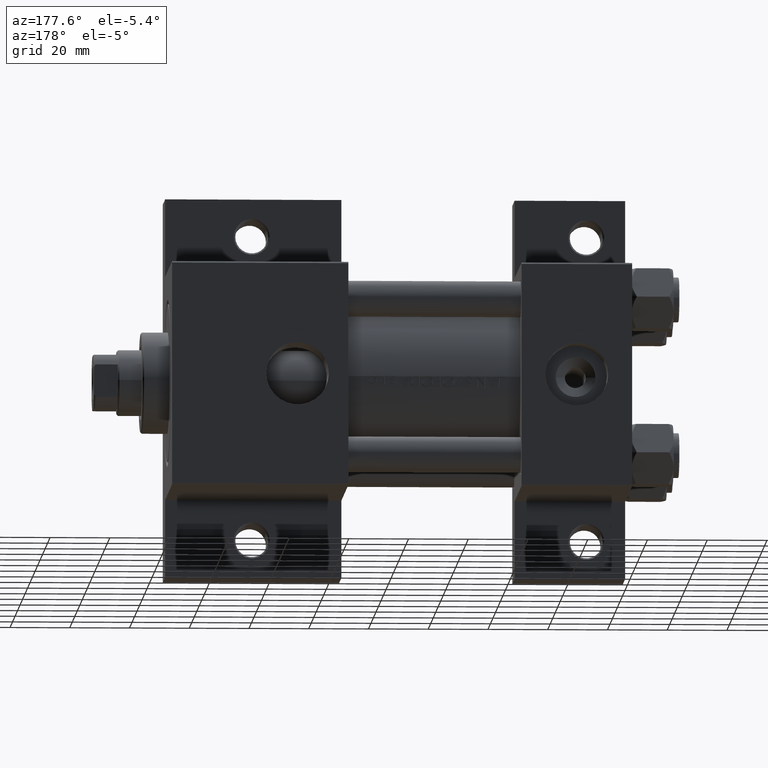
[diagram: clean part render]
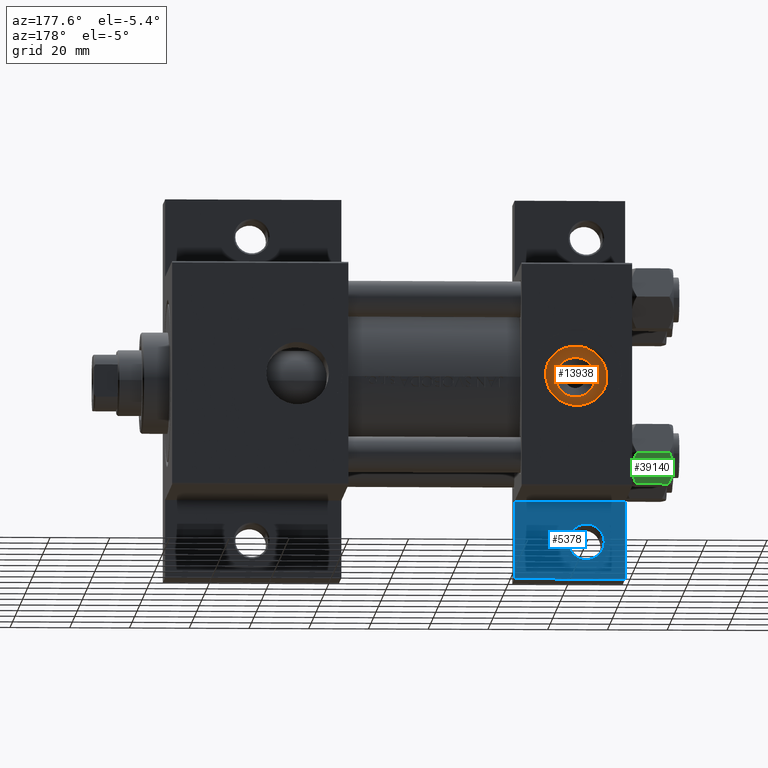
[diagram: same view with three faces highlighted in distinct colors, each labeled with its STEP entity id]
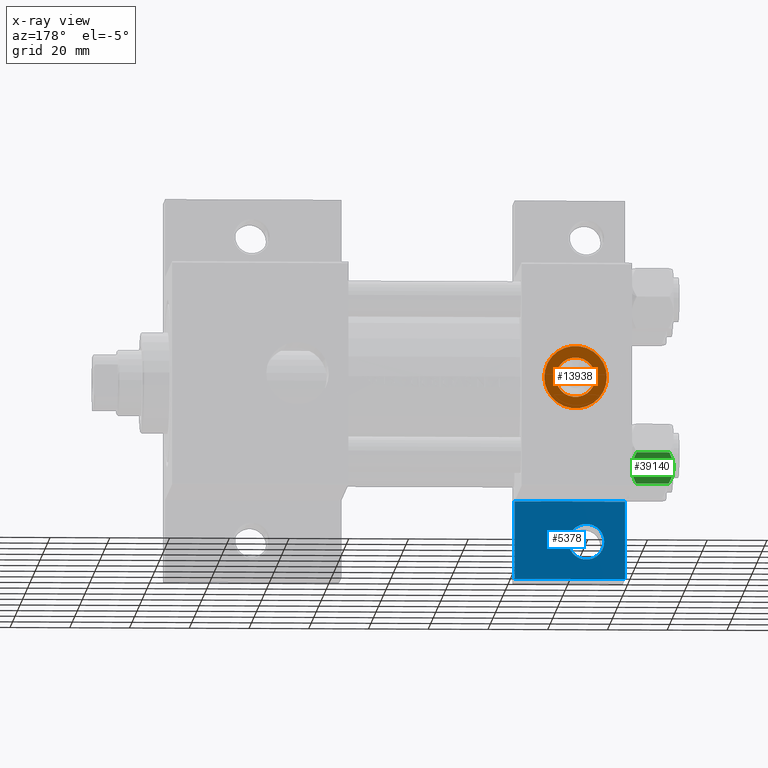
[diagram: x-ray of the same camera — body ghosted, the three highlighted faces saturated]
A machine part, auxiliary view with three faces highlighted in distinct colors.
The next image is the same camera in x-ray (body ghosted, the three faces saturated) — at least one of them is partly hidden behind the body in this view.
Their STEP definitions:

[orange] entity #13938 — the highlighted planar face has unit normal (0, 1, 0).
#2097 = ORIENTED_EDGE ( 'NONE', *, *, #35296, .T. ) ;
#2361 = AXIS2_PLACEMENT_3D ( 'NONE', #40285, #11439, #7837 ) ;
#3234 = PLANE ( 'NONE',  #36051 ) ;
#4849 = EDGE_CURVE ( 'NONE', #13226, #35530, #46183, .T. ) ;
#5433 = CIRCLE ( 'NONE', #2361, 10.48000000000000043 ) ;
#6639 = CARTESIAN_POINT ( 'NONE',  ( 18.50000000000000000, -5.204170427930421283E-15, 26.69999999999999929 ) ) ;
#7722 = AXIS2_PLACEMENT_3D ( 'NONE', #35243, #24886, #35713 ) ;
#7837 = DIRECTION ( 'NONE',  ( 1.000000000000000000, 0.000000000000000000, 0.000000000000000000 ) ) ;
#8680 = CARTESIAN_POINT ( 'NONE',  ( 28.98000000000000043, -5.204170427930421283E-15, 26.69999999999999929 ) ) ;
#9262 = CIRCLE ( 'NONE', #7722, 10.48000000000000043 ) ;
#10137 = AXIS2_PLACEMENT_3D ( 'NONE', #17073, #13008, #38261 ) ;
#10487 = DIRECTION ( 'NONE',  ( -0.000000000000000000, -0.000000000000000000, -1.000000000000000000 ) ) ;
#10716 = DIRECTION ( 'NONE',  ( 1.000000000000000000, 0.000000000000000000, 0.000000000000000000 ) ) ;
#11172 = DIRECTION ( 'NONE',  ( 1.000000000000000000, 0.000000000000000000, -0.000000000000000000 ) ) ;
#11337 = VERTEX_POINT ( 'NONE', #8680 ) ;
#11439 = DIRECTION ( 'NONE',  ( 0.000000000000000000, 0.000000000000000000, 1.000000000000000000 ) ) ;
#13008 = DIRECTION ( 'NONE',  ( -0.000000000000000000, -0.000000000000000000, -1.000000000000000000 ) ) ;
#13226 = VERTEX_POINT ( 'NONE', #32259 ) ;
#13938 = ADVANCED_FACE ( 'NONE', ( #39766, #14526 ), #3234, .T. ) ;
#14526 = FACE_OUTER_BOUND ( 'NONE', #42750, .T. ) ;
#15242 = EDGE_CURVE ( 'NONE', #11337, #33746, #9262, .T. ) ;
#17073 = CARTESIAN_POINT ( 'NONE',  ( 18.50000000000000000, -5.204170427930421283E-15, 26.69999999999999929 ) ) ;
#17163 = CARTESIAN_POINT ( 'NONE',  ( 25.13999999999998636, -5.204170427930421283E-15, 26.69999999999999929 ) ) ;
#17851 = CARTESIAN_POINT ( 'NONE',  ( 8.019999999999999574, -3.920740582423995006E-15, 26.69999999999999929 ) ) ;
#18963 = EDGE_CURVE ( 'NONE', #35530, #13226, #20879, .T. ) ;
#20879 = CIRCLE ( 'NONE', #10137, 6.639999999999986358 ) ;
#24571 = ORIENTED_EDGE ( 'NONE', *, *, #18963, .T. ) ;
#24886 = DIRECTION ( 'NONE',  ( 0.000000000000000000, 0.000000000000000000, 1.000000000000000000 ) ) ;
#25462 = AXIS2_PLACEMENT_3D ( 'NONE', #6639, #10487, #10716 ) ;
#29913 = DIRECTION ( 'NONE',  ( 0.000000000000000000, 0.000000000000000000, 1.000000000000000000 ) ) ;
#32259 = CARTESIAN_POINT ( 'NONE',  ( 11.86000000000001364, -4.391004953296580751E-15, 26.69999999999999929 ) ) ;
#33525 = CARTESIAN_POINT ( 'NONE',  ( 18.50000000000000000, -5.204170427930421283E-15, 26.69999999999999929 ) ) ;
#33746 = VERTEX_POINT ( 'NONE', #17851 ) ;
#33837 = ORIENTED_EDGE ( 'NONE', *, *, #15242, .T. ) ;
#34201 = ORIENTED_EDGE ( 'NONE', *, *, #4849, .T. ) ;
#35243 = CARTESIAN_POINT ( 'NONE',  ( 18.50000000000000000, -5.204170427930421283E-15, 26.69999999999999929 ) ) ;
#35296 = EDGE_CURVE ( 'NONE', #33746, #11337, #5433, .T. ) ;
#35530 = VERTEX_POINT ( 'NONE', #17163 ) ;
#35713 = DIRECTION ( 'NONE',  ( 1.000000000000000000, 0.000000000000000000, 0.000000000000000000 ) ) ;
#36051 = AXIS2_PLACEMENT_3D ( 'NONE', #33525, #29913, #11172 ) ;
#38261 = DIRECTION ( 'NONE',  ( 1.000000000000000000, 0.000000000000000000, 0.000000000000000000 ) ) ;
#39766 = FACE_BOUND ( 'NONE', #43105, .T. ) ;
#40285 = CARTESIAN_POINT ( 'NONE',  ( 18.50000000000000000, -5.204170427930421283E-15, 26.69999999999999929 ) ) ;
#42750 = EDGE_LOOP ( 'NONE', ( #33837, #2097 ) ) ;
#43105 = EDGE_LOOP ( 'NONE', ( #24571, #34201 ) ) ;
#46183 = CIRCLE ( 'NONE', #25462, 6.639999999999986358 ) ;

[blue] entity #5378 — the highlighted planar face has unit normal (0, -1, 0).
#1874 = CARTESIAN_POINT ( 'NONE',  ( 0.000000000000000000, 0.000000000000000000, -18.50000000000000000 ) ) ;
#2315 = DIRECTION ( 'NONE',  ( -1.000000000000000000, 0.000000000000000000, 0.000000000000000000 ) ) ;
#2326 = FACE_OUTER_BOUND ( 'NONE', #18309, .T. ) ;
#2333 = CARTESIAN_POINT ( 'NONE',  ( 7.000499999999947320, 50.99999999999996447, -18.50000000000000000 ) ) ;
#5234 = EDGE_LOOP ( 'NONE', ( #8523, #5543 ) ) ;
#5378 = ADVANCED_FACE ( 'NONE', ( #38874, #2326 ), #19907, .F. ) ;
#5543 = ORIENTED_EDGE ( 'NONE', *, *, #24812, .T. ) ;
#8523 = ORIENTED_EDGE ( 'NONE', *, *, #30485, .T. ) ;
#9198 = CARTESIAN_POINT ( 'NONE',  ( 1.595073532467135757E-14, 63.50000000000001421, -18.50000000000000355 ) ) ;
#9798 = AXIS2_PLACEMENT_3D ( 'NONE', #1874, #42237, #24217 ) ;
#12342 = CARTESIAN_POINT ( 'NONE',  ( 18.99950000000004735, 50.99999999999996447, -18.50000000000000000 ) ) ;
#13802 = DIRECTION ( 'NONE',  ( -1.000000000000000000, 0.000000000000000000, 0.000000000000000000 ) ) ;
#14796 = ORIENTED_EDGE ( 'NONE', *, *, #26935, .T. ) ;
#15175 = VERTEX_POINT ( 'NONE', #19160 ) ;
#15216 = CARTESIAN_POINT ( 'NONE',  ( 0.000000000000000000, 37.49999999999999289, -18.49999999999999645 ) ) ;
#15922 = EDGE_CURVE ( 'NONE', #20656, #22136, #38629, .T. ) ;
#16320 = VECTOR ( 'NONE', #41413, 1000.000000000000000 ) ;
#16481 = VERTEX_POINT ( 'NONE', #15216 ) ;
#16714 = LINE ( 'NONE', #27769, #46324 ) ;
#16971 = CARTESIAN_POINT ( 'NONE',  ( 37.00000000000001421, 63.50000000000001421, -18.50000000000000355 ) ) ;
#17217 = VERTEX_POINT ( 'NONE', #12342 ) ;
#17223 = DIRECTION ( 'NONE',  ( 1.000000000000000000, -3.750753461571474945E-16, 0.000000000000000000 ) ) ;
#18309 = EDGE_LOOP ( 'NONE', ( #38041, #24717, #30847, #14796 ) ) ;
#19160 = CARTESIAN_POINT ( 'NONE',  ( 1.595073532467135441E-14, 63.50000000000000000, -18.50000000000000355 ) ) ;
#19170 = EDGE_CURVE ( 'NONE', #16481, #20656, #43169, .T. ) ;
#19907 = PLANE ( 'NONE',  #9798 ) ;
#20145 = CARTESIAN_POINT ( 'NONE',  ( 8.470280871287256020E-15, 37.50000000000002842, -18.49999999999999645 ) ) ;
#20656 = VERTEX_POINT ( 'NONE', #46365 ) ;
#20775 = VECTOR ( 'NONE', #42453, 1000.000000000000000 ) ;
#22136 = VERTEX_POINT ( 'NONE', #32616 ) ;
#22633 = LINE ( 'NONE', #9198, #16320 ) ;
#23186 = DIRECTION ( 'NONE',  ( 0.000000000000000000, 0.000000000000000000, -1.000000000000000000 ) ) ;
#24006 = AXIS2_PLACEMENT_3D ( 'NONE', #37857, #23186, #38556 ) ;
#24217 = DIRECTION ( 'NONE',  ( -1.000000000000000000, 0.000000000000000000, -0.000000000000000000 ) ) ;
#24717 = ORIENTED_EDGE ( 'NONE', *, *, #19170, .T. ) ;
#24719 = VECTOR ( 'NONE', #17223, 1000.000000000000000 ) ;
#24812 = EDGE_CURVE ( 'NONE', #40049, #17217, #31682, .T. ) ;
#24983 = EDGE_CURVE ( 'NONE', #15175, #16481, #22633, .T. ) ;
#26935 = EDGE_CURVE ( 'NONE', #22136, #15175, #16714, .T. ) ;
#27769 = CARTESIAN_POINT ( 'NONE',  ( 1.595073532467135441E-14, 63.50000000000000000, -18.50000000000000355 ) ) ;
#30485 = EDGE_CURVE ( 'NONE', #17217, #40049, #32614, .T. ) ;
#30847 = ORIENTED_EDGE ( 'NONE', *, *, #15922, .T. ) ;
#31682 = CIRCLE ( 'NONE', #24006, 5.999500000000050015 ) ;
#32614 = CIRCLE ( 'NONE', #40298, 5.999500000000050015 ) ;
#32616 = CARTESIAN_POINT ( 'NONE',  ( 37.00000000000001421, 63.50000000000000000, -18.50000000000000355 ) ) ;
#35254 = CARTESIAN_POINT ( 'NONE',  ( 12.99999999999999822, 50.99999999999996447, -18.50000000000000000 ) ) ;
#37857 = CARTESIAN_POINT ( 'NONE',  ( 12.99999999999999822, 50.99999999999996447, -18.50000000000000000 ) ) ;
#38041 = ORIENTED_EDGE ( 'NONE', *, *, #24983, .T. ) ;
#38556 = DIRECTION ( 'NONE',  ( -1.000000000000000000, 0.000000000000000000, 0.000000000000000000 ) ) ;
#38629 = LINE ( 'NONE', #16971, #20775 ) ;
#38874 = FACE_BOUND ( 'NONE', #5234, .T. ) ;
#40049 = VERTEX_POINT ( 'NONE', #2333 ) ;
#40298 = AXIS2_PLACEMENT_3D ( 'NONE', #35254, #42457, #2315 ) ;
#41413 = DIRECTION ( 'NONE',  ( -2.877097866686192789E-16, -1.000000000000000000, 0.000000000000000000 ) ) ;
#42237 = DIRECTION ( 'NONE',  ( 0.000000000000000000, 0.000000000000000000, -1.000000000000000000 ) ) ;
#42453 = DIRECTION ( 'NONE',  ( 2.668805347656626678E-16, 1.000000000000000000, 0.000000000000000000 ) ) ;
#42457 = DIRECTION ( 'NONE',  ( 0.000000000000000000, 0.000000000000000000, -1.000000000000000000 ) ) ;
#43169 = LINE ( 'NONE', #20145, #24719 ) ;
#46324 = VECTOR ( 'NONE', #13802, 1000.000000000000000 ) ;
#46365 = CARTESIAN_POINT ( 'NONE',  ( 37.00000000000000711, 37.50000000000000711, -18.50000000000000355 ) ) ;

[green] entity #39140 — the highlighted planar face has unit normal (0, -0.866, 0.5).
#997 = CARTESIAN_POINT ( 'NONE',  ( -5.810000000000000497, -10.06321519197517844, -14.00000000000000000 ) ) ;
#2883 = CARTESIAN_POINT ( 'NONE',  ( -7.713000053756306151, -6.767122412062949621, -0.1545239700039825748 ) ) ;
#2918 = CARTESIAN_POINT ( 'NONE',  ( -11.61999999999999922, 6.270720075510426383E-15, -12.44321519197518811 ) ) ;
#3040 = VERTEX_POINT ( 'NONE', #22616 ) ;
#3416 = CARTESIAN_POINT ( 'NONE',  ( -6.265545725125286403, -9.274186850887383926, -12.89876091710047135 ) ) ;
#4132 = VECTOR ( 'NONE', #37074, 1000.000000000000000 ) ;
#5143 = CARTESIAN_POINT ( 'NONE',  ( -9.227666995912100489, -4.143642311704119230, -0.03994118060690584476 ) ) ;
#6289 = CARTESIAN_POINT ( 'NONE',  ( -8.715000000000005187, -5.031607595987585668, -14.00000000000000000 ) ) ;
#7004 = CARTESIAN_POINT ( 'NONE',  ( -10.69662495661650325, -1.599332489581326122, -13.28854452935654962 ) ) ;
#7845 = DIRECTION ( 'NONE',  ( -0.4999999999999994449, 0.8660254037844389297, 0.000000000000000000 ) ) ;
#9987 = ORIENTED_EDGE ( 'NONE', *, *, #27836, .T. ) ;
#11635 = CARTESIAN_POINT ( 'NONE',  ( -11.61999999999999922, 6.301834029662224111E-15, -1.556784808024812117 ) ) ;
#11844 = ORIENTED_EDGE ( 'NONE', *, *, #35935, .F. ) ;
#12351 = CARTESIAN_POINT ( 'NONE',  ( -10.69859855102501101, -1.595914123792257389, -0.7141438259524618415 ) ) ;
#13676 = CARTESIAN_POINT ( 'NONE',  ( -11.61999999999999922, 6.288644352490894150E-15, -14.00000000000000000 ) ) ;
#13752 = CARTESIAN_POINT ( 'NONE',  ( -7.700834831386345058, -6.788193195293090731, -13.80960203119265906 ) ) ;
#13901 = VERTEX_POINT ( 'NONE', #15244 ) ;
#15057 = CARTESIAN_POINT ( 'NONE',  ( -5.810000000000000497, -10.06321519197517844, -14.00000000000000000 ) ) ;
#15244 = CARTESIAN_POINT ( 'NONE',  ( -5.810000000000000497, -10.06321519197517844, -12.44321519197518455 ) ) ;
#17327 = ORIENTED_EDGE ( 'NONE', *, *, #18014, .F. ) ;
#17804 = EDGE_CURVE ( 'NONE', #3040, #35467, #32670, .T. ) ;
#18014 = EDGE_CURVE ( 'NONE', #13901, #21241, #26963, .T. ) ;
#18078 = CARTESIAN_POINT ( 'NONE',  ( -7.455303369716807182, -7.213466161761382445, -13.69973261901325934 ) ) ;
#19073 = EDGE_CURVE ( 'NONE', #35467, #47172, #44656, .T. ) ;
#19804 = CARTESIAN_POINT ( 'NONE',  ( -8.969430103550381617, -4.590921729663306472, 4.863663183134191758E-15 ) ) ;
#21210 = CARTESIAN_POINT ( 'NONE',  ( -5.810000000000000497, -10.06321519197517844, -12.44321519197518455 ) ) ;
#21241 = VERTEX_POINT ( 'NONE', #6289 ) ;
#21636 = CARTESIAN_POINT ( 'NONE',  ( -8.209704053696569304, -5.906805847843719981, 4.553649124439113890E-15 ) ) ;
#22616 = CARTESIAN_POINT ( 'NONE',  ( -11.61999999999999922, 6.301834029662224111E-15, -1.556784808024812117 ) ) ;
#22745 = DIRECTION ( 'NONE',  ( 0.8660254037844390407, 0.4999999999999995004, 0.000000000000000000 ) ) ;
#23415 = CARTESIAN_POINT ( 'NONE',  ( -8.715000000000005187, -5.031607595987585668, 0.000000000000000000 ) ) ;
#23973 = B_SPLINE_CURVE_WITH_KNOTS ( 'NONE', 3,
 ( #29361, #25996, #39925, #7004, #35858, #2918 ),
 .UNSPECIFIED., .F., .F.,
 ( 4, 2, 4 ),
 ( 0.006022845781655597648, 0.009013049135303643697, 0.01200325248895169061 ),
 .UNSPECIFIED. ) ;
#24786 = VECTOR ( 'NONE', #27880, 1000.000000000000000 ) ;
#25403 = EDGE_CURVE ( 'NONE', #31704, #3040, #35796, .T. ) ;
#25476 = CARTESIAN_POINT ( 'NONE',  ( -8.715000000000005187, -5.031607595987585668, 0.000000000000000000 ) ) ;
#25996 = CARTESIAN_POINT ( 'NONE',  ( -9.220295946303432189, -4.156409344131445138, -14.00000000000000711 ) ) ;
#26248 = LINE ( 'NONE', #997, #4132 ) ;
#26963 = B_SPLINE_CURVE_WITH_KNOTS ( 'NONE', 3,
 ( #21210, #3416, #28899, #18078, #13752, #29377, #43542, #35871 ),
 .UNSPECIFIED., .F., .F.,
 ( 4, 2, 2, 4 ),
 ( 2.544312114906334931E-07, 0.003011550106433545128, 0.004517197944044571388, 0.006022845781655597648 ),
 .UNSPECIFIED. ) ;
#27015 = CARTESIAN_POINT ( 'NONE',  ( -9.729165168613651105, -3.275021996682077052, -0.1903979688073393906 ) ) ;
#27836 = EDGE_CURVE ( 'NONE', #13901, #47172, #26248, .T. ) ;
#27880 = DIRECTION ( 'NONE',  ( -0.000000000000000000, -0.000000000000000000, 1.000000000000000000 ) ) ;
#28899 = CARTESIAN_POINT ( 'NONE',  ( -6.731401448974990487, -8.467301068182912616, -13.28585617404753627 ) ) ;
#29361 = CARTESIAN_POINT ( 'NONE',  ( -8.715000000000005187, -5.031607595987585668, -14.00000000000000000 ) ) ;
#29377 = CARTESIAN_POINT ( 'NONE',  ( -8.202333004087901003, -5.919572880271046778, -13.96005881939309390 ) ) ;
#31218 = CARTESIAN_POINT ( 'NONE',  ( -11.61999999999999922, 6.270720075510426383E-15, -12.44321519197518811 ) ) ;
#31704 = VERTEX_POINT ( 'NONE', #31218 ) ;
#32304 = CARTESIAN_POINT ( 'NONE',  ( -8.715000000000005187, -5.031607595987585668, 0.000000000000000000 ) ) ;
#32670 = B_SPLINE_CURVE_WITH_KNOTS ( 'NONE', 3,
 ( #11635, #45273, #12351, #41199, #27015, #5143, #19804, #23415 ),
 .UNSPECIFIED., .F., .F.,
 ( 4, 2, 2, 4 ),
 ( 2.544312114899214560E-07, 0.003011550106433539924, 0.004517197944044563582, 0.006022845781655587240 ),
 .UNSPECIFIED. ) ;
#32847 = FACE_OUTER_BOUND ( 'NONE', #40010, .T. ) ;
#35215 = CARTESIAN_POINT ( 'NONE',  ( -5.810000000000000497, -10.06321519197517844, -1.556784808024815225 ) ) ;
#35467 = VERTEX_POINT ( 'NONE', #32304 ) ;
#35796 = LINE ( 'NONE', #13676, #24786 ) ;
#35858 = CARTESIAN_POINT ( 'NONE',  ( -11.16498164529022041, -0.7881149087337220305, -12.89823354668505040 ) ) ;
#35871 = CARTESIAN_POINT ( 'NONE',  ( -8.715000000000005187, -5.031607595987585668, -14.00000000000000000 ) ) ;
#35935 = EDGE_CURVE ( 'NONE', #21241, #31704, #23973, .T. ) ;
#36302 = CARTESIAN_POINT ( 'NONE',  ( -5.810000000000000497, -10.06321519197517844, -1.556784808024815225 ) ) ;
#36696 = PLANE ( 'NONE',  #46212 ) ;
#37074 = DIRECTION ( 'NONE',  ( -0.000000000000000000, -0.000000000000000000, 1.000000000000000000 ) ) ;
#38155 = ORIENTED_EDGE ( 'NONE', *, *, #17804, .F. ) ;
#39140 = ADVANCED_FACE ( 'NONE', ( #32847 ), #36696, .F. ) ;
#39925 = CARTESIAN_POINT ( 'NONE',  ( -9.716999946243696229, -3.296092779912219495, -13.84547602999602134 ) ) ;
#40010 = EDGE_LOOP ( 'NONE', ( #17327, #9987, #45887, #38155, #44930, #11844 ) ) ;
#40134 = CARTESIAN_POINT ( 'NONE',  ( -6.265018354709778414, -9.275100283241449972, -1.101766453314953820 ) ) ;
#41199 = CARTESIAN_POINT ( 'NONE',  ( -9.974696630283188981, -2.849749030213787560, -0.3002673809867339449 ) ) ;
#43012 = CARTESIAN_POINT ( 'NONE',  ( -6.733375043383497349, -8.463882702393840773, -0.7114554706434500497 ) ) ;
#43542 = CARTESIAN_POINT ( 'NONE',  ( -8.460569896449618099, -5.472293462311855095, -14.00000000000000355 ) ) ;
#44656 = B_SPLINE_CURVE_WITH_KNOTS ( 'NONE', 3,
 ( #25476, #21636, #2883, #43012, #40134, #36302 ),
 .UNSPECIFIED., .F., .F.,
 ( 4, 2, 4 ),
 ( 0.006022845781655587240, 0.009013049135303635023, 0.01200325248895168541 ),
 .UNSPECIFIED. ) ;
#44930 = ORIENTED_EDGE ( 'NONE', *, *, #25403, .F. ) ;
#45273 = CARTESIAN_POINT ( 'NONE',  ( -11.16445427487471598, -0.7890283410877912962, -1.101239082899529764 ) ) ;
#45887 = ORIENTED_EDGE ( 'NONE', *, *, #19073, .F. ) ;
#46212 = AXIS2_PLACEMENT_3D ( 'NONE', #15057, #22745, #7845 ) ;
#47172 = VERTEX_POINT ( 'NONE', #35215 ) ;